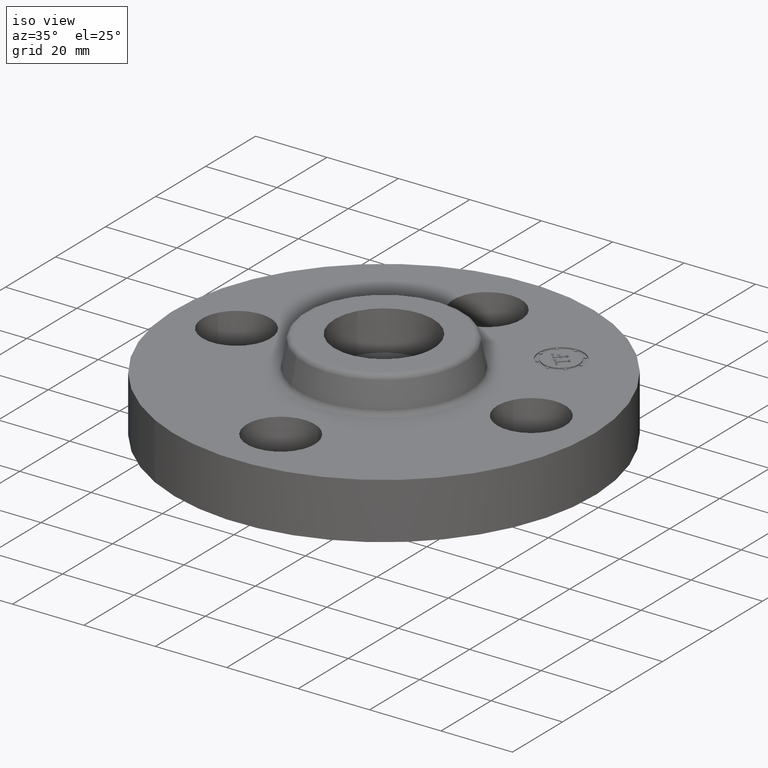
[diagram: clean part render]
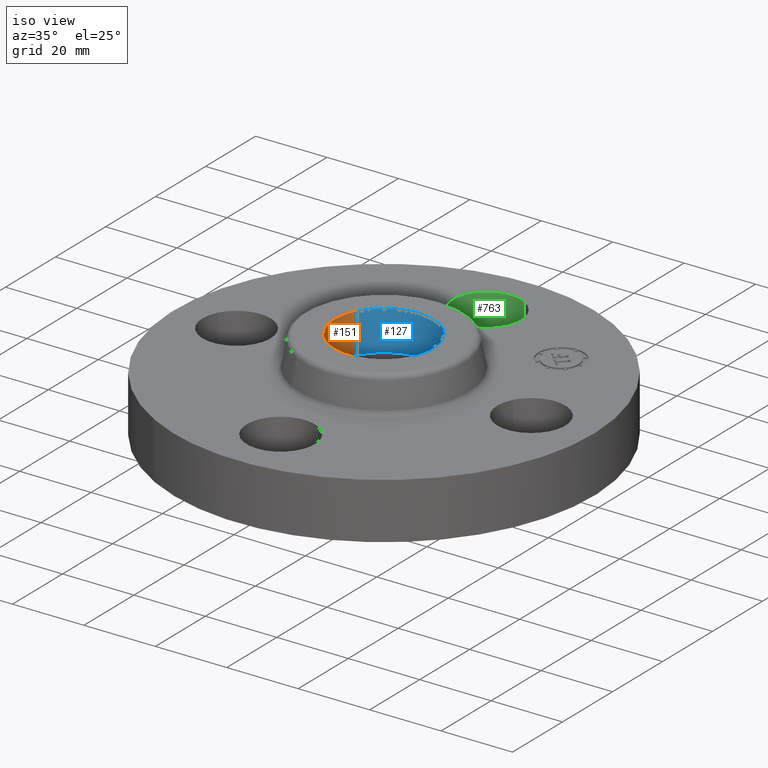
[diagram: same view with three faces highlighted in distinct colors, each labeled with its STEP entity id]
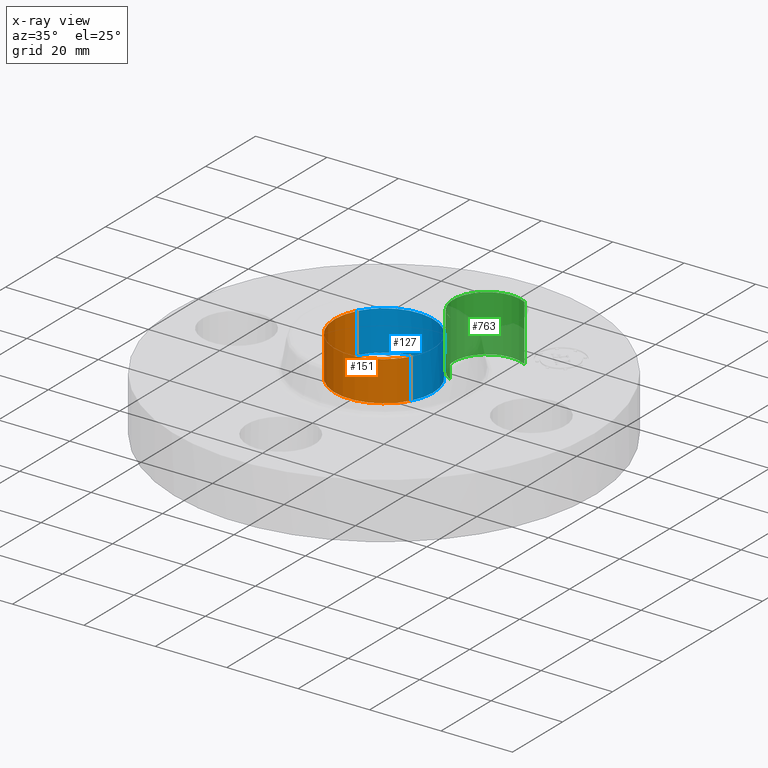
[diagram: x-ray of the same camera — body ghosted, the three highlighted faces saturated]
A machine part, iso view with three faces highlighted in distinct colors.
The next image is the same camera in x-ray (body ghosted, the three faces saturated) — at least one of them is partly hidden behind the body in this view.
Their STEP definitions:

[orange] entity #151 — the highlighted cylindrical surface (partial cylindrical patch) has radius 13.843 mm, axis along (0, 0, -1).
#51=AXIS2_PLACEMENT_3D('Circle Axis2P3D',#49,#50,$) ;
#138=AXIS2_PLACEMENT_3D('Cylinder Axis2P3D',#135,#136,#137) ;
#142=AXIS2_PLACEMENT_3D('Circle Axis2P3D',#140,#141,$) ;
#44=CARTESIAN_POINT('Vertex',(-0.47828249626,0.261286918558,0.560000000002)) ;
#46=CARTESIAN_POINT('Vertex',(0.47828249626,-0.261286918558,0.560000000002)) ;
#49=CARTESIAN_POINT('Axis2P3D Location',(-1.74838271595E-017,-6.99353086378E-017,0.560000000002)) ;
#106=CARTESIAN_POINT('Vertex',(-0.47828249626,0.261286918521,1.)) ;
#108=CARTESIAN_POINT('Vertex',(0.47828249626,-0.261286918521,1.)) ;
#111=CARTESIAN_POINT('Line Origine',(-0.478282496232,0.26128691854,0.780000000001)) ;
#116=CARTESIAN_POINT('Line Origine',(0.478282496232,-0.26128691854,0.780000000001)) ;
#135=CARTESIAN_POINT('Axis2P3D Location',(0.,-6.99353086378E-017,0.99606299213)) ;
#140=CARTESIAN_POINT('Axis2P3D Location',(0.,-6.99353086378E-017,0.999999999989)) ;
#50=DIRECTION('Axis2P3D Direction',(0.,0.,-0.0393700787402)) ;
#112=DIRECTION('Vector Direction',(0.,0.,-0.0393700787402)) ;
#117=DIRECTION('Vector Direction',(0.,0.,-0.0393700787402)) ;
#136=DIRECTION('Axis2P3D Direction',(0.,0.,-0.0393700787402)) ;
#137=DIRECTION('Axis2P3D XDirection',(0.0345504945626,-0.0188750212049,0.)) ;
#141=DIRECTION('Axis2P3D Direction',(0.,0.,-0.0393700787402)) ;
#113=VECTOR('Line Direction',#112,0.0393700787402) ;
#118=VECTOR('Line Direction',#117,0.0393700787402) ;
#146=ORIENTED_EDGE('',*,*,#144,.F.) ;
#147=ORIENTED_EDGE('',*,*,#120,.F.) ;
#148=ORIENTED_EDGE('',*,*,#53,.T.) ;
#149=ORIENTED_EDGE('',*,*,#115,.T.) ;
#151=ADVANCED_FACE('PartBody',(#150),#139,.F.) ;
#52=CIRCLE('generated circle',#51,0.545000000035) ;
#143=CIRCLE('generated circle',#142,0.545000000002) ;
#139=CYLINDRICAL_SURFACE('generated cylinder',#138,0.545000000002) ;
#53=EDGE_CURVE('',#47,#45,#52,.T.) ;
#115=EDGE_CURVE('',#45,#107,#114,.F.) ;
#120=EDGE_CURVE('',#47,#109,#119,.F.) ;
#144=EDGE_CURVE('',#109,#107,#143,.T.) ;
#145=EDGE_LOOP('',(#146,#147,#148,#149)) ;
#150=FACE_OUTER_BOUND('',#145,.T.) ;
#114=LINE('Line',#111,#113) ;
#119=LINE('Line',#116,#118) ;
#45=VERTEX_POINT('',#44) ;
#47=VERTEX_POINT('',#46) ;
#107=VERTEX_POINT('',#106) ;
#109=VERTEX_POINT('',#108) ;

[blue] entity #127 — the highlighted cylindrical surface (partial cylindrical patch) has radius 13.843 mm, axis along (0, 0, -1).
#42=AXIS2_PLACEMENT_3D('Circle Axis2P3D',#40,#41,$) ;
#88=AXIS2_PLACEMENT_3D('Cylinder Axis2P3D',#85,#86,#87) ;
#40=CARTESIAN_POINT('Axis2P3D Location',(1.74838271595E-017,-6.99353086378E-017,0.560000000002)) ;
#44=CARTESIAN_POINT('Vertex',(-0.47828249626,0.261286918558,0.560000000002)) ;
#46=CARTESIAN_POINT('Vertex',(0.47828249626,-0.261286918558,0.560000000002)) ;
#85=CARTESIAN_POINT('Axis2P3D Location',(0.,-6.99353086378E-017,0.99606299213)) ;
#91=CARTESIAN_POINT('Control Point',(-0.478282496232,0.26128691854,1.)) ;
#92=CARTESIAN_POINT('Control Point',(-0.437239643044,0.336415357366,0.999999999999)) ;
#93=CARTESIAN_POINT('Control Point',(-0.381445355387,0.403485050812,0.999999999999)) ;
#94=CARTESIAN_POINT('Control Point',(-0.312997615358,0.458621018005,0.999999999998)) ;
#95=CARTESIAN_POINT('Control Point',(-0.158171490313,0.539083781193,0.999999999997)) ;
#96=CARTESIAN_POINT('Control Point',(0.01558441809,0.555029612983,0.999999999996)) ;
#97=CARTESIAN_POINT('Control Point',(0.102971295511,0.54561676814,0.999999999996)) ;
#98=CARTESIAN_POINT('Control Point',(0.269345663919,0.4930339307,0.999999999995)) ;
#99=CARTESIAN_POINT('Control Point',(0.403485050812,0.381445355387,0.999999999994)) ;
#100=CARTESIAN_POINT('Control Point',(0.458621018005,0.312997615358,0.999999999993)) ;
#101=CARTESIAN_POINT('Control Point',(0.539083781193,0.158171490313,0.999999999992)) ;
#102=CARTESIAN_POINT('Control Point',(0.555029612983,-0.0155844180898,0.999999999991)) ;
#103=CARTESIAN_POINT('Control Point',(0.545616768141,-0.102971295511,0.99999999999)) ;
#104=CARTESIAN_POINT('Control Point',(0.51932534942,-0.186158479715,0.99999999999)) ;
#105=CARTESIAN_POINT('Control Point',(0.478282496232,-0.26128691854,0.999999999989)) ;
#106=CARTESIAN_POINT('Vertex',(-0.47828249626,0.261286918521,1.)) ;
#108=CARTESIAN_POINT('Vertex',(0.47828249626,-0.261286918521,1.)) ;
#111=CARTESIAN_POINT('Line Origine',(-0.478282496232,0.26128691854,0.780000000001)) ;
#116=CARTESIAN_POINT('Line Origine',(0.478282496232,-0.26128691854,0.780000000001)) ;
#41=DIRECTION('Axis2P3D Direction',(0.,0.,-0.0393700787402)) ;
#86=DIRECTION('Axis2P3D Direction',(0.,0.,-0.0393700787402)) ;
#87=DIRECTION('Axis2P3D XDirection',(-0.0345504945626,0.0188750212049,-0.)) ;
#112=DIRECTION('Vector Direction',(0.,0.,-0.0393700787402)) ;
#117=DIRECTION('Vector Direction',(0.,0.,-0.0393700787402)) ;
#113=VECTOR('Line Direction',#112,0.0393700787402) ;
#118=VECTOR('Line Direction',#117,0.0393700787402) ;
#122=ORIENTED_EDGE('',*,*,#110,.F.) ;
#123=ORIENTED_EDGE('',*,*,#115,.F.) ;
#124=ORIENTED_EDGE('',*,*,#48,.T.) ;
#125=ORIENTED_EDGE('',*,*,#120,.T.) ;
#127=ADVANCED_FACE('PartBody',(#126),#89,.F.) ;
#90=B_SPLINE_CURVE_WITH_KNOTS('',5,(#91,#92,#93,#94,#95,#96,#97,#98,#99,#100,#101,#102,#103,#104,#105),.UNSPECIFIED.,.F.,.U.,(6,3,3,3,6),(-21.7445335519,-10.8722667759,1.7763568394E-015,10.8722667759,21.7445335519),.UNSPECIFIED.) ;
#43=CIRCLE('generated circle',#42,0.545000000035) ;
#89=CYLINDRICAL_SURFACE('generated cylinder',#88,0.545000000002) ;
#48=EDGE_CURVE('',#45,#47,#43,.T.) ;
#110=EDGE_CURVE('',#107,#109,#90,.T.) ;
#115=EDGE_CURVE('',#45,#107,#114,.F.) ;
#120=EDGE_CURVE('',#47,#109,#119,.F.) ;
#121=EDGE_LOOP('',(#122,#123,#124,#125)) ;
#126=FACE_OUTER_BOUND('',#121,.T.) ;
#114=LINE('Line',#111,#113) ;
#119=LINE('Line',#116,#118) ;
#45=VERTEX_POINT('',#44) ;
#47=VERTEX_POINT('',#46) ;
#107=VERTEX_POINT('',#106) ;
#109=VERTEX_POINT('',#108) ;

[green] entity #763 — the highlighted cylindrical surface (partial cylindrical patch) has radius 9.525 mm, axis along (-0, 0, -1).
#351=AXIS2_PLACEMENT_3D('Circle Axis2P3D',#349,#350,$) ;
#736=AXIS2_PLACEMENT_3D('Cylinder Axis2P3D',#733,#734,#735) ;
#754=AXIS2_PLACEMENT_3D('Circle Axis2P3D',#752,#753,$) ;
#349=CARTESIAN_POINT('Axis2P3D Location',(-3.49676543189E-017,1.62500000003,0.)) ;
#353=CARTESIAN_POINT('Vertex',(-0.179784576973,1.29590653933,0.)) ;
#355=CARTESIAN_POINT('Vertex',(0.179784576973,1.95409346072,0.)) ;
#733=CARTESIAN_POINT('Axis2P3D Location',(-2.98507657293E-016,1.62500000001,0.616062992128)) ;
#738=CARTESIAN_POINT('Line Origine',(-0.179784576977,1.2959065393,0.309999999994)) ;
#742=CARTESIAN_POINT('Vertex',(-0.179784576973,1.2959065393,0.620000000002)) ;
#745=CARTESIAN_POINT('Line Origine',(0.179784576977,1.95409346072,0.309999999994)) ;
#749=CARTESIAN_POINT('Vertex',(0.179784576977,1.95409346072,0.619999999987)) ;
#752=CARTESIAN_POINT('Axis2P3D Location',(-2.98507657293E-016,1.62500000001,0.619999999987)) ;
#350=DIRECTION('Axis2P3D Direction',(0.,0.,-0.0393700787402)) ;
#734=DIRECTION('Axis2P3D Direction',(-0.,0.,-0.0393700787402)) ;
#735=DIRECTION('Axis2P3D XDirection',(-0.0188750212049,-0.0345504945626,0.)) ;
#739=DIRECTION('Vector Direction',(0.,0.,-0.0393700787402)) ;
#746=DIRECTION('Vector Direction',(0.,0.,-0.0393700787402)) ;
#753=DIRECTION('Axis2P3D Direction',(-0.,0.,-0.0393700787402)) ;
#740=VECTOR('Line Direction',#739,0.0393700787402) ;
#747=VECTOR('Line Direction',#746,0.0393700787402) ;
#758=ORIENTED_EDGE('',*,*,#744,.F.) ;
#759=ORIENTED_EDGE('',*,*,#357,.T.) ;
#760=ORIENTED_EDGE('',*,*,#751,.T.) ;
#761=ORIENTED_EDGE('',*,*,#756,.F.) ;
#763=ADVANCED_FACE('PartBody',(#762),#737,.F.) ;
#352=CIRCLE('generated circle',#351,0.374999999988) ;
#755=CIRCLE('generated circle',#754,0.375000000001) ;
#737=CYLINDRICAL_SURFACE('generated cylinder',#736,0.375000000001) ;
#357=EDGE_CURVE('',#354,#356,#352,.T.) ;
#744=EDGE_CURVE('',#354,#743,#741,.F.) ;
#751=EDGE_CURVE('',#356,#750,#748,.F.) ;
#756=EDGE_CURVE('',#743,#750,#755,.T.) ;
#757=EDGE_LOOP('',(#758,#759,#760,#761)) ;
#762=FACE_OUTER_BOUND('',#757,.T.) ;
#741=LINE('Line',#738,#740) ;
#748=LINE('Line',#745,#747) ;
#354=VERTEX_POINT('',#353) ;
#356=VERTEX_POINT('',#355) ;
#743=VERTEX_POINT('',#742) ;
#750=VERTEX_POINT('',#749) ;